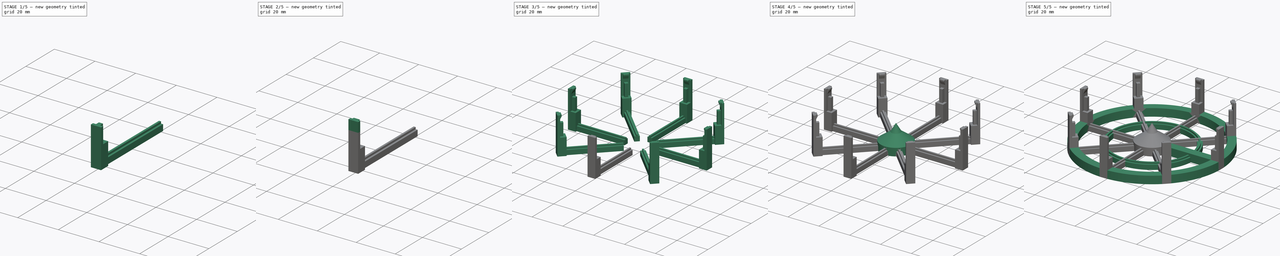
[diagram: build sequence overview — one tinted view per stage of 5, left to right]
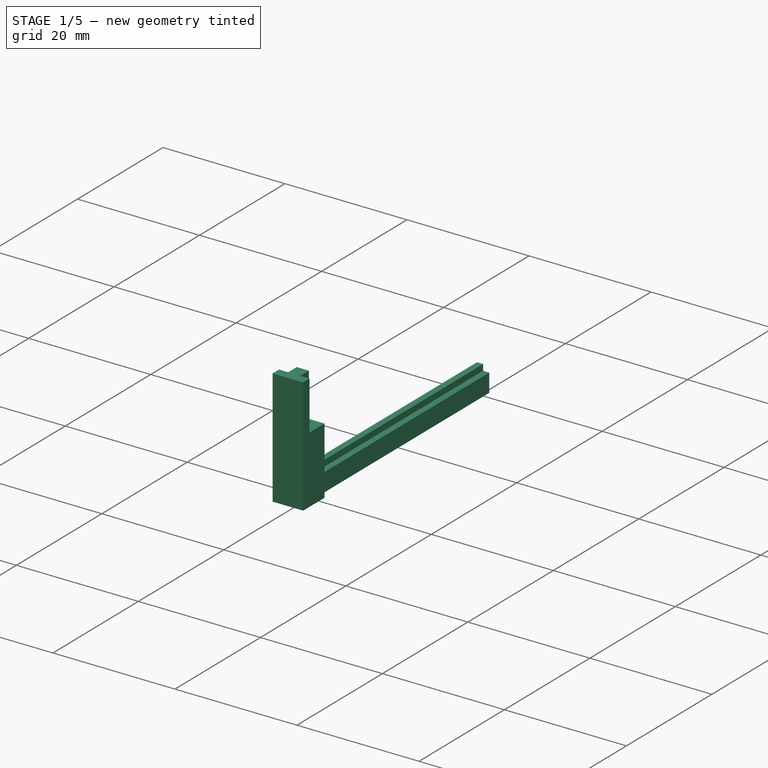
[diagram: stage 1 of 5 — iso view after this stage's code; geometry added in this stage tinted green]
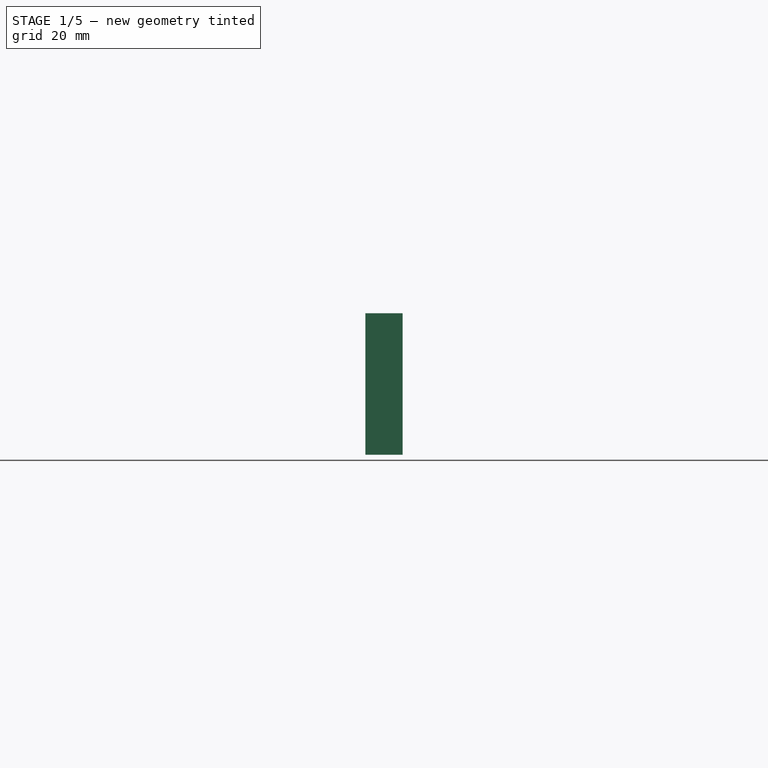
[diagram: stage 1 of 5 — front view after this stage's code; geometry added in this stage tinted green]
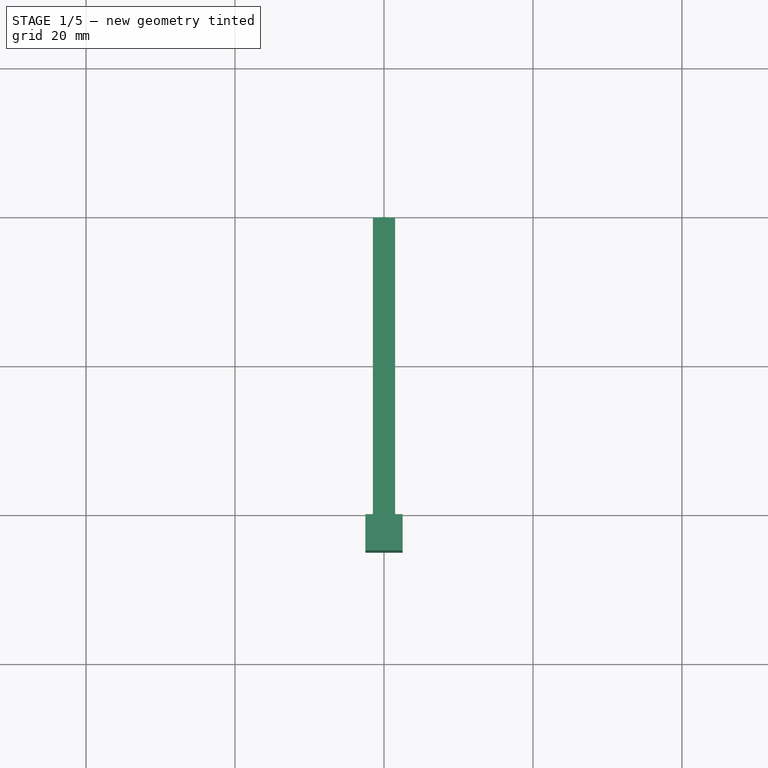
[diagram: stage 1 of 5 — top view after this stage's code; geometry added in this stage tinted green]
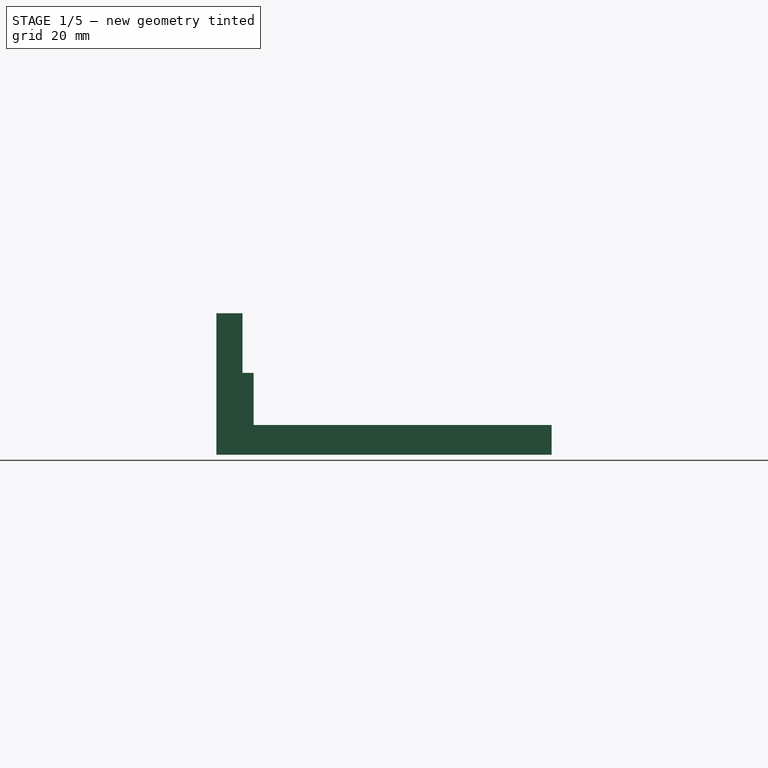
[diagram: stage 1 of 5 — right view after this stage's code; geometry added in this stage tinted green]
FCSTD DOCUMENT  (FreeCAD 0.18.4R)
Label: impeller-box-downside
License: All rights reserved
LicenseURL: http://en.wikipedia.org/wiki/All_rights_reserved
objects: Sketcher::SketchObject×14, PartDesign::Pad×11, PartDesign::Body×5, PartDesign::FeatureBase×3, PartDesign::AdditiveCone×2, Part::Fuse×2, Part::Loft×1, PartDesign::Fillet×1, PartDesign::Pocket×1, Part::FeaturePython×1
note: 55 computed .brp shape members not serialized (recipe doc carries the construction recipe); baked Part::Feature solids carry a one-line shape summary decoded from their .brp

FEATURE [PartDesign::Body] Body  label="center"
  Group = -> [Sketch,Pad,Cone,Cone001]
  Origin = -> Origin
  Tip = -> Cone001
FEATURE [Sketcher::SketchObject] Sketch001
  MapMode = 5
  Placement = pos=(0,0,0) rot=(1,0,0;1.5708rad)
  Support = -> [XZ_Plane001]
  sketch-geometry (4):
    g0: LineSegment StartX=-1.5 StartY=3 StartZ=0 EndX=1.5 EndY=3 EndZ=0
    g1: LineSegment StartX=1.5 StartY=3 StartZ=0 EndX=1.5 EndY=0 EndZ=0
    g2: LineSegment StartX=1.5 StartY=0 StartZ=0 EndX=-1.5 EndY=0 EndZ=0
    g3: LineSegment StartX=-1.5 StartY=0 StartZ=0 EndX=-1.5 EndY=3 EndZ=0
  constraints (12):
    c: Coincident(g0,g1)
    c: Coincident(g1,g2)
    c: Coincident(g2,g3)
    c: Coincident(g3,g0)
    c: Horizontal(g0)
    c: Horizontal(g2)
    c: Vertical(g1)
    c: Vertical(g3)
    c: DistanceX(g0,g0) = 3
    c: DistanceX(g2,g-1) = 1.5
    c: DistanceY(g1,g1) = 3
    c: DistanceY(g-1,g1) = 0
FEATURE [PartDesign::Pad] Pad001
  Length = 45
  Length2 = 100
  Placement = pos=(0,0,0) rot=(1,0,0;1.5708rad)
  Profile = -> Sketch001
  Type = 0
FEATURE [Sketcher::SketchObject] Sketch002
  AttachmentOffset = pos=(0,0,-3) rot=(0,0,1;0rad)
  MapMode = 5
  Placement = pos=(0,-7e-16,3) rot=(1,0,0;3.14159rad)
  Support = -> [Pad001]
  sketch-geometry (4):
    g0: LineSegment StartX=-0.5 StartY=45 StartZ=0 EndX=0.5 EndY=45 EndZ=0
    g1: LineSegment StartX=0.5 StartY=45 StartZ=0 EndX=0.5 EndY=0 EndZ=0
    g2: LineSegment StartX=0.5 StartY=0 StartZ=0 EndX=-0.5 EndY=0 EndZ=0
    g3: LineSegment StartX=-0.5 StartY=0 StartZ=0 EndX=-0.5 EndY=45 EndZ=0
  constraints (12):
    c: Coincident(g0,g1)
    c: Coincident(g1,g2)
    c: Coincident(g2,g3)
    c: Coincident(g3,g0)
    c: Horizontal(g0)
    c: Horizontal(g2)
    c: Vertical(g1)
    c: Vertical(g3)
    c: DistanceX(g2,g2) = 1
    c: DistanceY(g1,g1) = 45
    c: DistanceY(g-1,g1) = 0
    c: DistanceX(g2,g-1) = 0.5
FEATURE [PartDesign::Pad] Pad002
  BaseFeature = -> Pad001
  Length = 1
  Length2 = 100
  Placement = pos=(0,0,0) rot=(1,0,0;1.5708rad)
  Profile = -> Sketch002
  Reversed = true
  Type = 0
FEATURE [Sketcher::SketchObject] Sketch003
  MapMode = 5
  Support = -> [XY_Plane001]
  sketch-geometry (4):
    g0: LineSegment StartX=-2.5 StartY=-40 StartZ=0 EndX=2.5 EndY=-40 EndZ=0
    g1: LineSegment StartX=2.5 StartY=-40 StartZ=0 EndX=2.5 EndY=-45 EndZ=0
    g2: LineSegment StartX=2.5 StartY=-45 StartZ=0 EndX=-2.5 EndY=-45 EndZ=0
    g3: LineSegment StartX=-2.5 StartY=-45 StartZ=0 EndX=-2.5 EndY=-40 EndZ=0
  constraints (12):
    c: Coincident(g0,g1)
    c: Coincident(g1,g2)
    c: Coincident(g2,g3)
    c: Coincident(g3,g0)
    c: Horizontal(g0)
    c: Horizontal(g2)
    c: Vertical(g1)
    c: Vertical(g3)
    c: DistanceX(g0,g-1) = 2.5
    c: DistanceX(g0,g0) = 5
    c: DistanceY(g1,g1) = 5
    c: DistanceY(g1,g-1) = 45
FEATURE [PartDesign::Pad] Pad003
  BaseFeature = -> Pad002
  Length = 11
  Length2 = 100
  Placement = pos=(0,0,0) rot=(1,0,0;1.5708rad)
  Profile = -> Sketch003
  Type = 0
FEATURE [Sketcher::SketchObject] Sketch004
  ExternalGeometry = -> [Pad003]
  MapMode = 5
  Placement = pos=(0,0,11) rot=(0,0,1;3.14159rad)
  Support = -> [Pad003]
  sketch-geometry (8):
    g0: LineSegment StartX=-2.5 StartY=45 StartZ=0 EndX=2.5 EndY=45 EndZ=0
    g1: LineSegment StartX=2.5 StartY=45 StartZ=0 EndX=2.5 EndY=43.5 EndZ=0
    g2: LineSegment StartX=2.5 StartY=43.5 StartZ=0 EndX=1 EndY=43.5 EndZ=0
    g3: LineSegment StartX=1 StartY=43.5 StartZ=0 EndX=1 EndY=41.5 EndZ=0
    g4: LineSegment StartX=1 StartY=41.5 StartZ=0 EndX=-1 EndY=41.5 EndZ=0
    g5: LineSegment StartX=-1 StartY=41.5 StartZ=0 EndX=-1 EndY=43.5 EndZ=0
    g6: LineSegment StartX=-1 StartY=43.5 StartZ=0 EndX=-2.5 EndY=43.5 EndZ=0
    g7: LineSegment StartX=-2.5 StartY=43.5 StartZ=0 EndX=-2.5 EndY=45 EndZ=0
  constraints (22):
    c: Coincident(g0,g1)
    c: Coincident(g1,g2)
    c: Coincident(g2,g3)
    c: Coincident(g3,g4)
    c: Coincident(g4,g5)
    c: Coincident(g5,g6)
    c: Coincident(g6,g7)
    c: Coincident(g7,g0)
    c: Coincident(g0,g-3)
    c: Coincident(g0,g-3)
    c: Vertical(g1)
    c: Vertical(g7)
    c: Vertical(g5)
    c: Vertical(g3)
    c: Horizontal(g2)
    c: Horizontal(g6)
    c: Horizontal(g4)
    c: DistanceX(g2,g2) = 1.5
    c: DistanceX(g6,g6) = 1.5
    c: DistanceY(g7,g7) = 1.5
    c: DistanceY(g1,g1) = 1.5
    c: DistanceY(g3,g3) = 2
FEATURE [PartDesign::Pad] Pad004
  BaseFeature = -> Pad003
  Length = 8
  Length2 = 100
  Placement = pos=(0,0,0) rot=(1,0,0;1.5708rad)
  Profile = -> Sketch004
  Type = 0
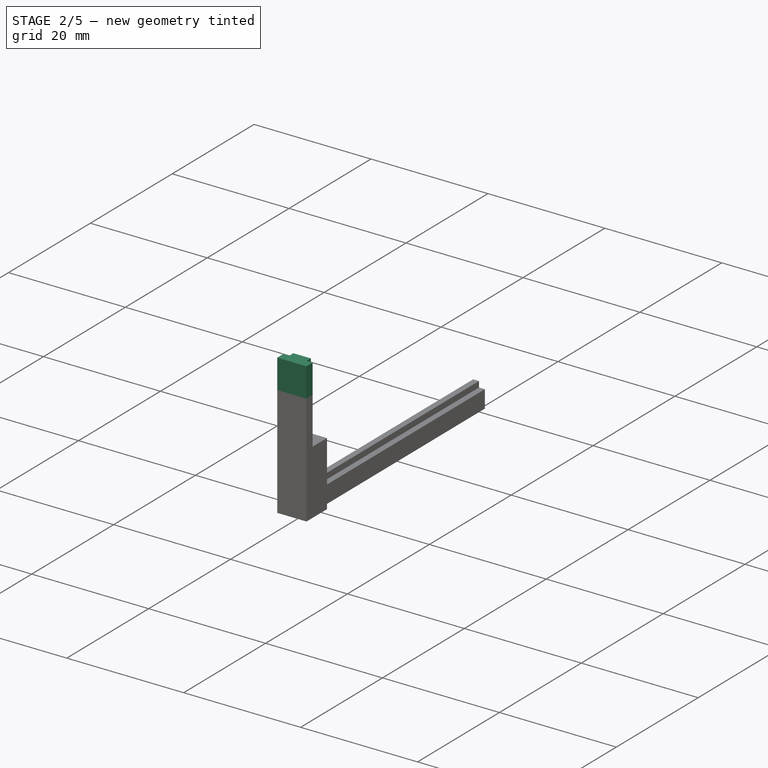
[diagram: stage 2 of 5 — iso view after this stage's code; geometry added in this stage tinted green]
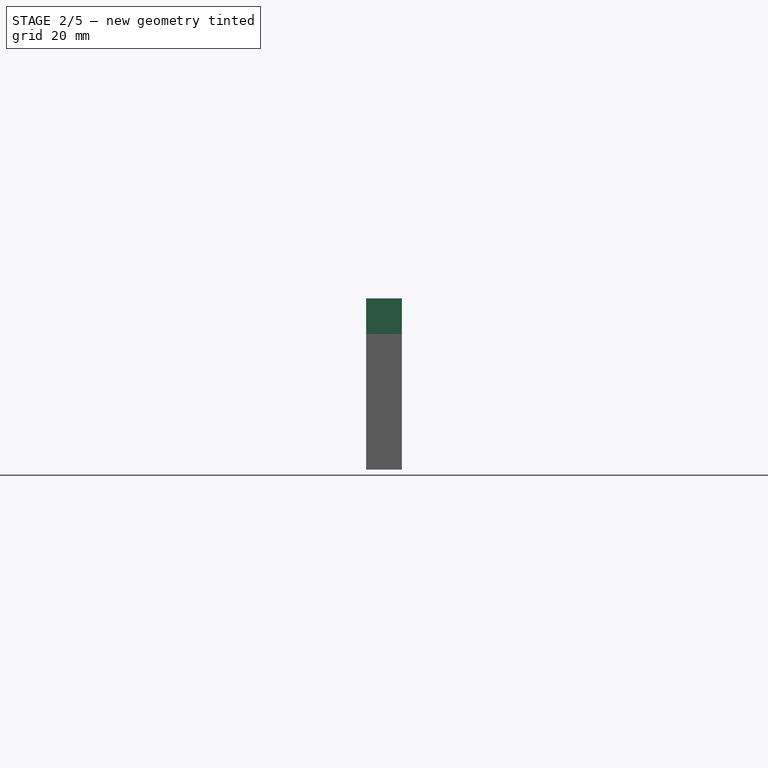
[diagram: stage 2 of 5 — front view after this stage's code; geometry added in this stage tinted green]
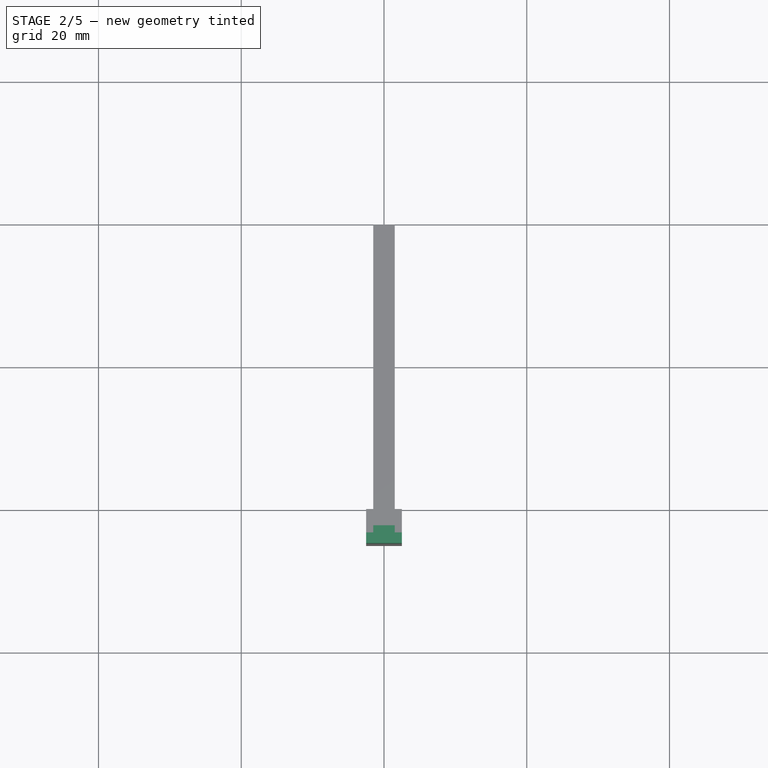
[diagram: stage 2 of 5 — top view after this stage's code; geometry added in this stage tinted green]
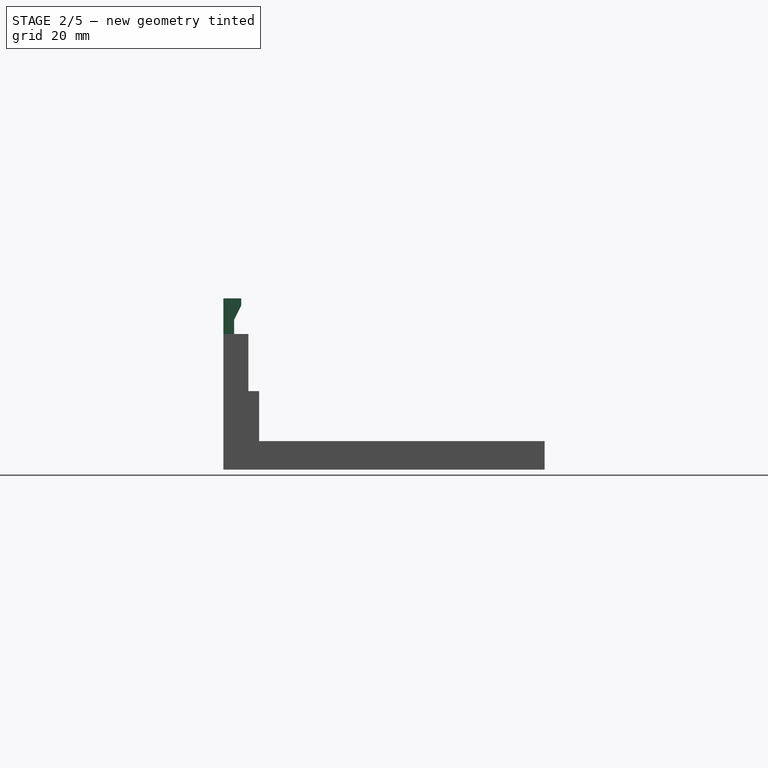
[diagram: stage 2 of 5 — right view after this stage's code; geometry added in this stage tinted green]
FEATURE [Sketcher::SketchObject] Sketch005
  ExternalGeometry = -> [Pad004]
  MapMode = 5
  Placement = pos=(0,0,19) rot=(0,0,1;3.14159rad)
  Support = -> [Pad004]
  sketch-geometry (4):
    g0: LineSegment StartX=-2.5 StartY=45 StartZ=0 EndX=2.5 EndY=45 EndZ=0
    g1: LineSegment StartX=2.5 StartY=45 StartZ=0 EndX=2.5 EndY=43.5 EndZ=0
    g2: LineSegment StartX=2.5 StartY=43.5 StartZ=0 EndX=-2.5 EndY=43.5 EndZ=0
    g3: LineSegment StartX=-2.5 StartY=43.5 StartZ=0 EndX=-2.5 EndY=45 EndZ=0
  constraints (11):
    c: Coincident(g0,g1)
    c: Coincident(g1,g2)
    c: Coincident(g2,g3)
    c: Coincident(g3,g0)
    c: Horizontal(g0)
    c: Horizontal(g2)
    c: Vertical(g1)
    c: Vertical(g3)
    c: Coincident(g0,g-3)
    c: DistanceX(g0,g0) = 5
    c: DistanceY(g3,g3) = 1.5
FEATURE [PartDesign::Pad] Pad005
  BaseFeature = -> Pad004
  Length = 5
  Length2 = 100
  Placement = pos=(0,0,0) rot=(1,0,0;1.5708rad)
  Profile = -> Sketch005
  Type = 0
FEATURE [Sketcher::SketchObject] Sketch006
  ExternalGeometry = -> [Pad005]
  MapMode = 5
  Placement = pos=(0,-43.5,0) rot=(-1,0,0;1.5708rad)
  Support = -> [Pad005]
  sketch-geometry (4):
    g0: LineSegment StartX=-1.5 StartY=-23 StartZ=0 EndX=1.5 EndY=-23 EndZ=0
    g1: LineSegment StartX=1.5 StartY=-23 StartZ=0 EndX=1.5 EndY=-24 EndZ=0
    g2: LineSegment StartX=1.5 StartY=-24 StartZ=0 EndX=-1.5 EndY=-24 EndZ=0
    g3: LineSegment StartX=-1.5 StartY=-24 StartZ=0 EndX=-1.5 EndY=-23 EndZ=0
  constraints (12):
    c: Coincident(g0,g1)
    c: Coincident(g1,g2)
    c: Coincident(g2,g3)
    c: Coincident(g3,g0)
    c: Horizontal(g0)
    c: Horizontal(g2)
    c: Vertical(g1)
    c: Vertical(g3)
    c: DistanceX(g2,g2) = 3
    c: DistanceY(g1,g1) = 1
    c: DistanceY(g2,g-3) = 0
    c: DistanceX(g1,g-3) = 1
FEATURE [PartDesign::Pad] Pad006
  BaseFeature = -> Pad005
  Length = 1
  Length2 = 100
  Placement = pos=(0,0,0) rot=(1,0,0;1.5708rad)
  Profile = -> Sketch006
  Type = 0
FEATURE [Sketcher::SketchObject] Sketch007
  AttachmentOffset = pos=(0,0,-1) rot=(0,0,1;0rad)
  ExternalGeometry = -> [Pad006]
  MapMode = 5
  Placement = pos=(0,0,23) rot=(0,0,1;3.14159rad)
  Support = -> [Pad006]
  sketch-geometry (4):
    g0: LineSegment StartX=-1.5 StartY=43.5 StartZ=0 EndX=1.5 EndY=43.5 EndZ=0
    g1: LineSegment StartX=1.5 StartY=43.5 StartZ=0 EndX=1.5 EndY=42.5 EndZ=0
    g2: LineSegment StartX=1.5 StartY=42.5 StartZ=0 EndX=-1.5 EndY=42.5 EndZ=0
    g3: LineSegment StartX=-1.5 StartY=42.5 StartZ=0 EndX=-1.5 EndY=43.5 EndZ=0
  constraints (10):
    c: Coincident(g0,g1)
    c: Coincident(g1,g2)
    c: Coincident(g2,g3)
    c: Coincident(g3,g0)
    c: Horizontal(g0)
    c: Horizontal(g2)
    c: Vertical(g1)
    c: Vertical(g3)
    c: Coincident(g0,g-3)
    c: Coincident(g2,g-4)
FEATURE [Sketcher::SketchObject] Sketch008
  AttachmentOffset = pos=(0,1,-3) rot=(0,0,1;0rad)
  MapMode = 5
  Placement = pos=(0,-1,21) rot=(0,0,1;3.14159rad)
  Support = -> [Pad006]
  sketch-geometry (4):
    g0: LineSegment StartX=-1.5 StartY=43.5 StartZ=0 EndX=1.5 EndY=43.5 EndZ=0
    g1: LineSegment StartX=1.5 StartY=43.5 StartZ=0 EndX=1.5 EndY=42.5 EndZ=0
    g2: LineSegment StartX=1.5 StartY=42.5 StartZ=0 EndX=-1.5 EndY=42.5 EndZ=0
    g3: LineSegment StartX=-1.5 StartY=42.5 StartZ=0 EndX=-1.5 EndY=43.5 EndZ=0
  constraints (12):
    c: Coincident(g0,g1)
    c: Coincident(g1,g2)
    c: Coincident(g2,g3)
    c: Coincident(g3,g0)
    c: Horizontal(g0)
    c: Horizontal(g2)
    c: Vertical(g1)
    c: Vertical(g3)
    c: DistanceX(g0,g0) = 3
    c: DistanceY(g1,g1) = 1
    c: DistanceY(g-1,g1) = 42.5
    c: DistanceX(g-1,g1) = 1.5
FEATURE [PartDesign::Body] Body001
  Group = -> [Sketch001,Pad001,Sketch002,Pad002,Sketch003,Pad003,Sketch004,Pad004,Sketch005,Pad005,Sketch006,Pad006,Sketch007,Sketch008]
  Origin = -> Origin001
  Tip = -> Pad006
FEATURE [Part::Loft] Loft
  Closed = false
  MaxDegree = 5
  Ruled = false
  Sections = -> [Sketch007,Sketch008]
  Solid = true
FEATURE [Part::Fuse] Fusion
  Base = -> Body001
  Tool = -> Loft
FEATURE [PartDesign::FeatureBase] BaseFeature
  BaseFeature = -> Fusion
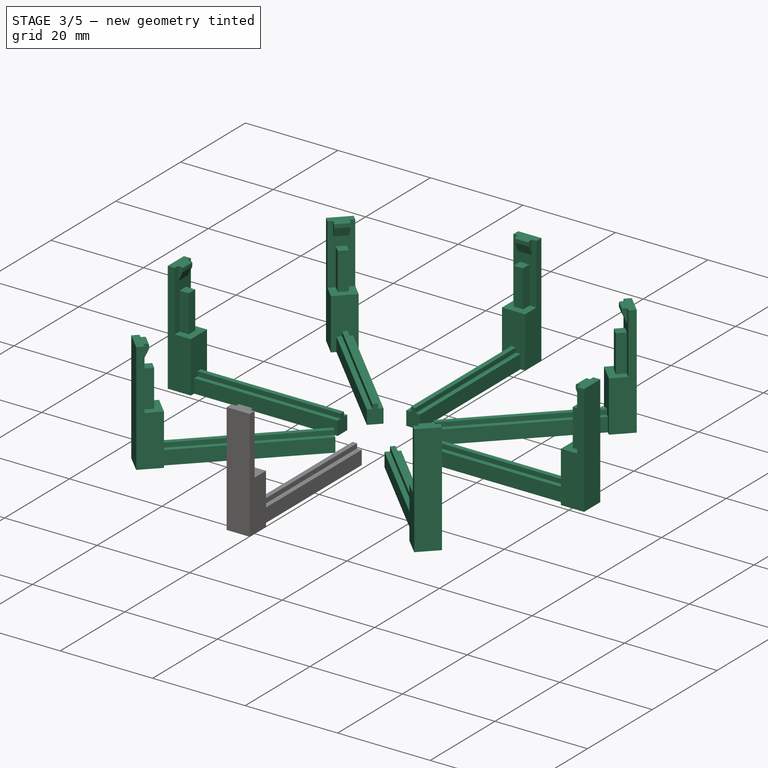
[diagram: stage 3 of 5 — iso view after this stage's code; geometry added in this stage tinted green]
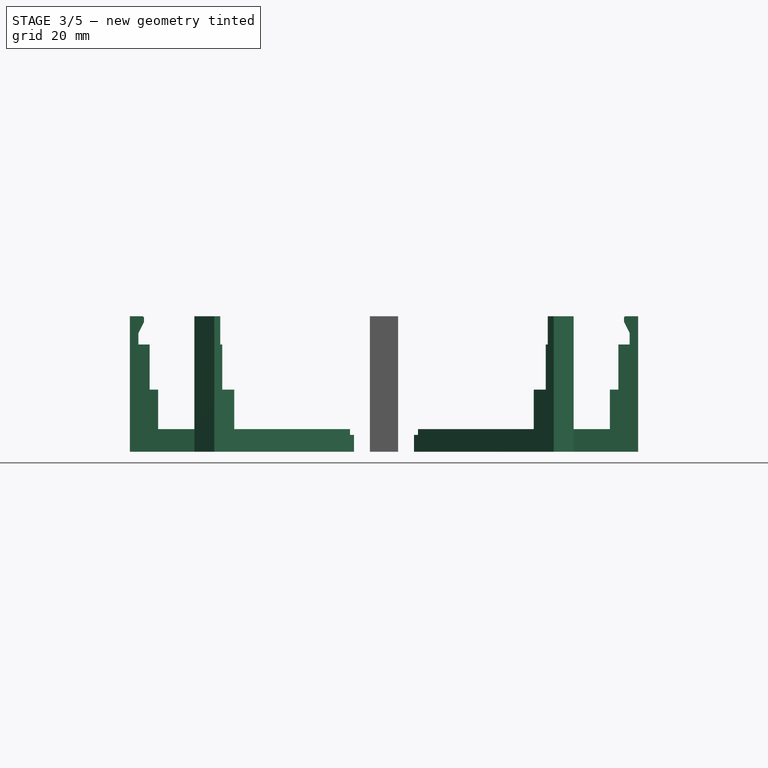
[diagram: stage 3 of 5 — front view after this stage's code; geometry added in this stage tinted green]
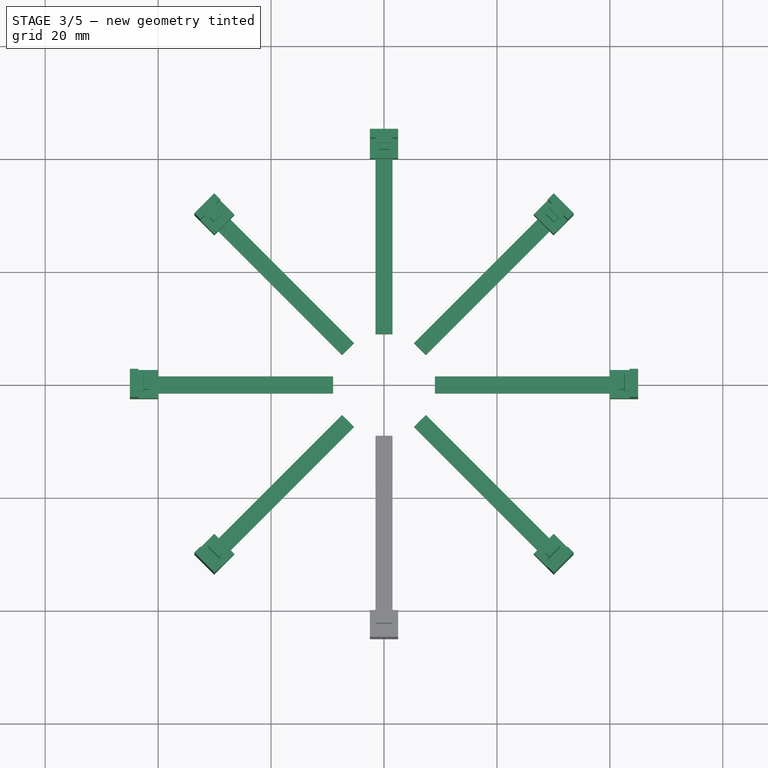
[diagram: stage 3 of 5 — top view after this stage's code; geometry added in this stage tinted green]
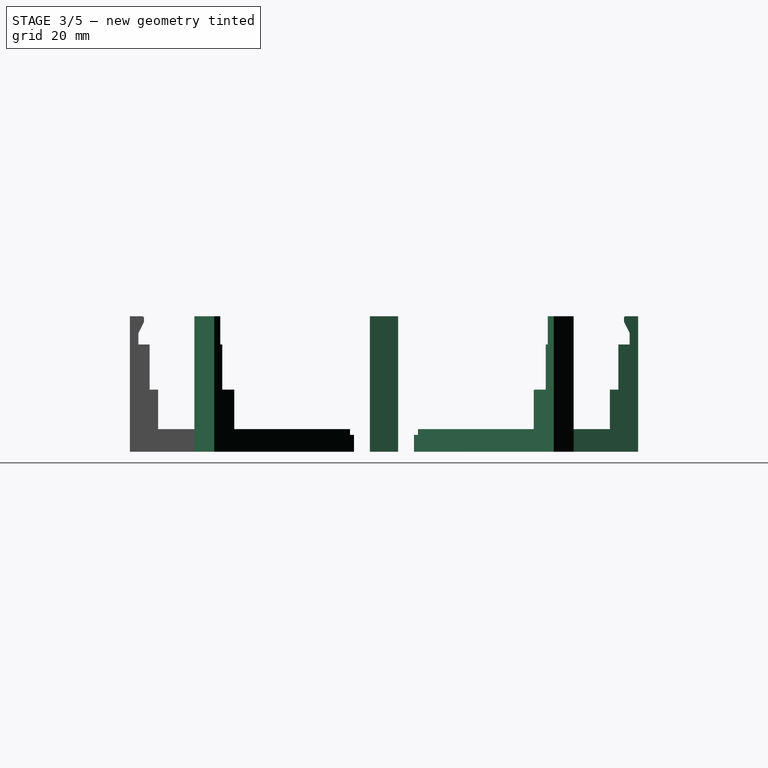
[diagram: stage 3 of 5 — right view after this stage's code; geometry added in this stage tinted green]
FEATURE [PartDesign::Fillet] Fillet
  Base = -> BaseFeature [Edge99]
  BaseFeature = -> BaseFeature
  Radius = 0.3
FEATURE [Sketcher::SketchObject] Sketch009
  MapMode = 5
  Placement = pos=(0,0,0) rot=(1,0,0;3.14159rad)
  Support = -> [Fillet]
  sketch-geometry (4):
    g0: LineSegment StartX=-2.5 StartY=9 StartZ=0 EndX=2.5 EndY=9 EndZ=0
    g1: LineSegment StartX=2.5 StartY=9 StartZ=0 EndX=2.5 EndY=0 EndZ=0
    g2: LineSegment StartX=2.5 StartY=0 StartZ=0 EndX=-2.5 EndY=0 EndZ=0
    g3: LineSegment StartX=-2.5 StartY=0 StartZ=0 EndX=-2.5 EndY=9 EndZ=0
  constraints (12):
    c: Coincident(g0,g1)
    c: Coincident(g1,g2)
    c: Coincident(g2,g3)
    c: Coincident(g3,g0)
    c: Horizontal(g0)
    c: Horizontal(g2)
    c: Vertical(g1)
    c: Vertical(g3)
    c: DistanceY(g1,g1) = 9
    c: DistanceY(g1,g-1) = 0
    c: DistanceX(g0,g0) = 5
    c: DistanceX(g0,g-1) = 2.5
FEATURE [PartDesign::Pocket] Pocket
  BaseFeature = -> Fillet
  Length = 10
  Length2 = 100
  Profile = -> Sketch009
  Type = 0
FEATURE [PartDesign::Body] Body002
  BaseFeature = -> Fusion
  Group = -> [BaseFeature,Fillet,Sketch009,Pocket]
  Origin = -> Origin002
  Tip = -> Pocket
FEATURE [Part::FeaturePython] Array  # Draft array (typed FeaturePython)
  Angle = 360
  ArrayType = 1
  Axis = (0,0,1)
  Base = -> Body002
  Center = (0,0,0)
  Fuse = false
  IntervalAxis = (0,0,0)
  IntervalX = (1,0,0)
  IntervalY = (0,1,0)
  IntervalZ = (0,0,1)
  NumberPolar = 8
  NumberX = 2
  NumberY = 2
  NumberZ = 1
FEATURE [PartDesign::FeatureBase] BaseFeature001
  BaseFeature = -> Array
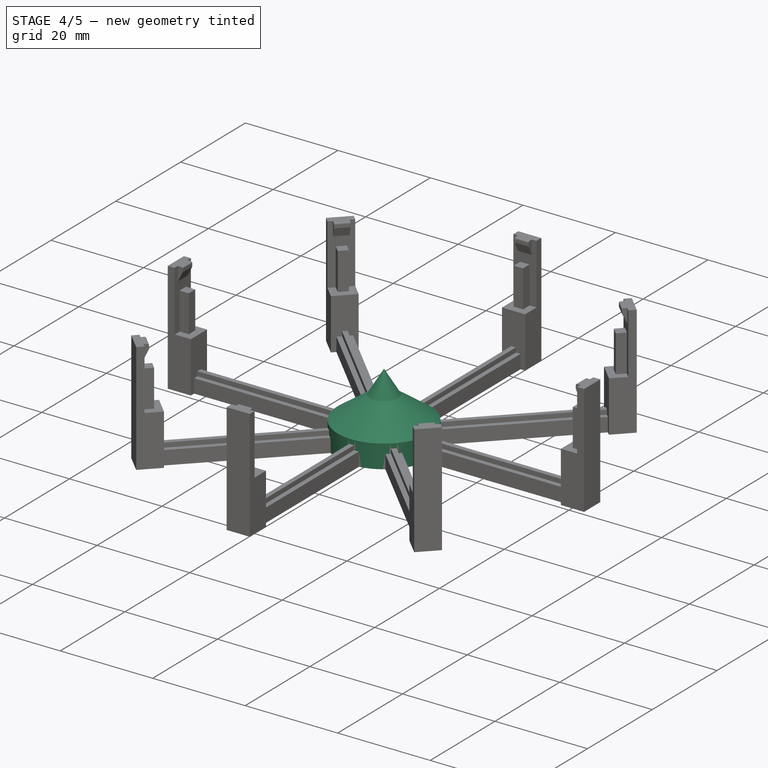
[diagram: stage 4 of 5 — iso view after this stage's code; geometry added in this stage tinted green]
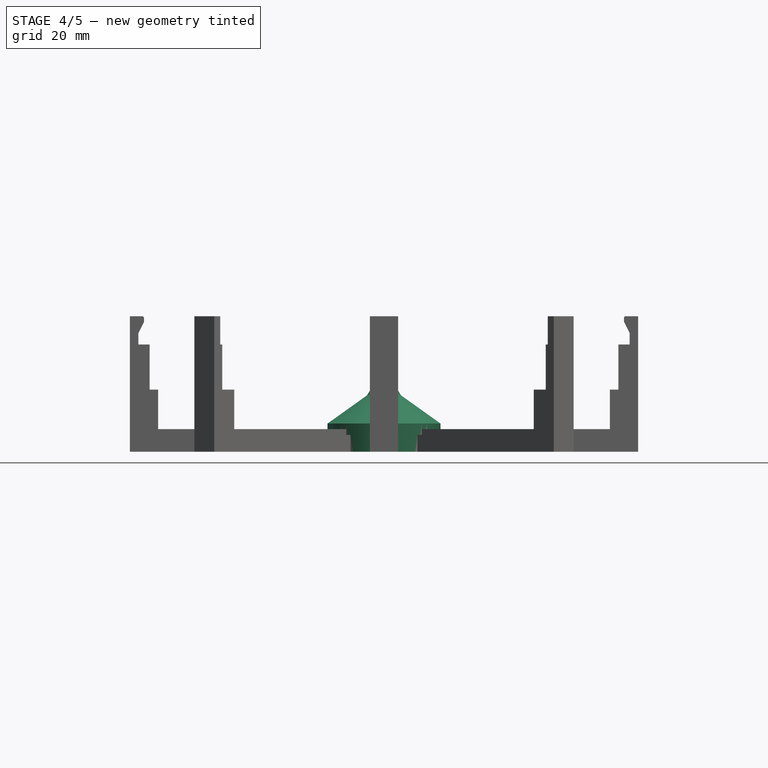
[diagram: stage 4 of 5 — front view after this stage's code; geometry added in this stage tinted green]
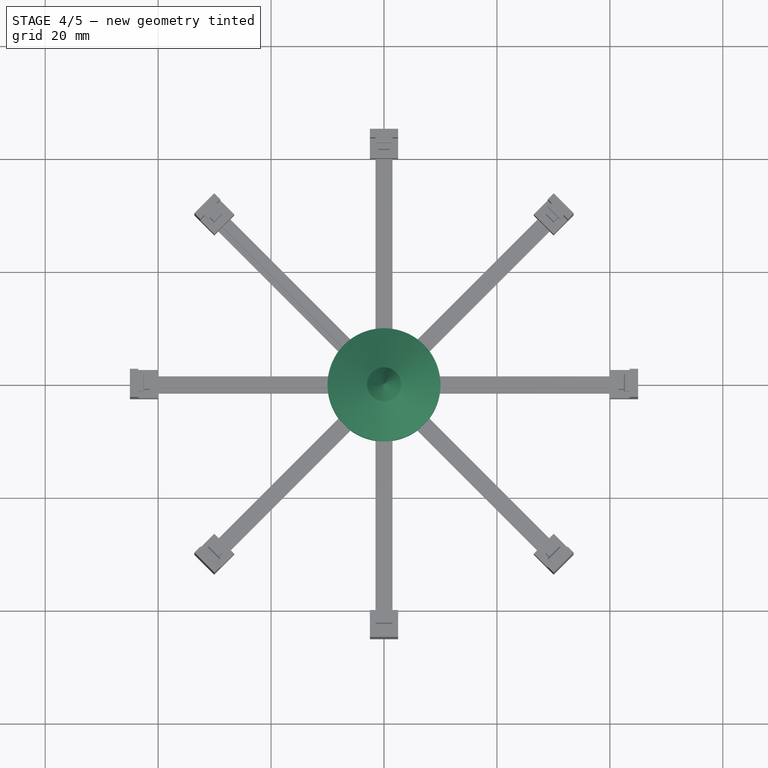
[diagram: stage 4 of 5 — top view after this stage's code; geometry added in this stage tinted green]
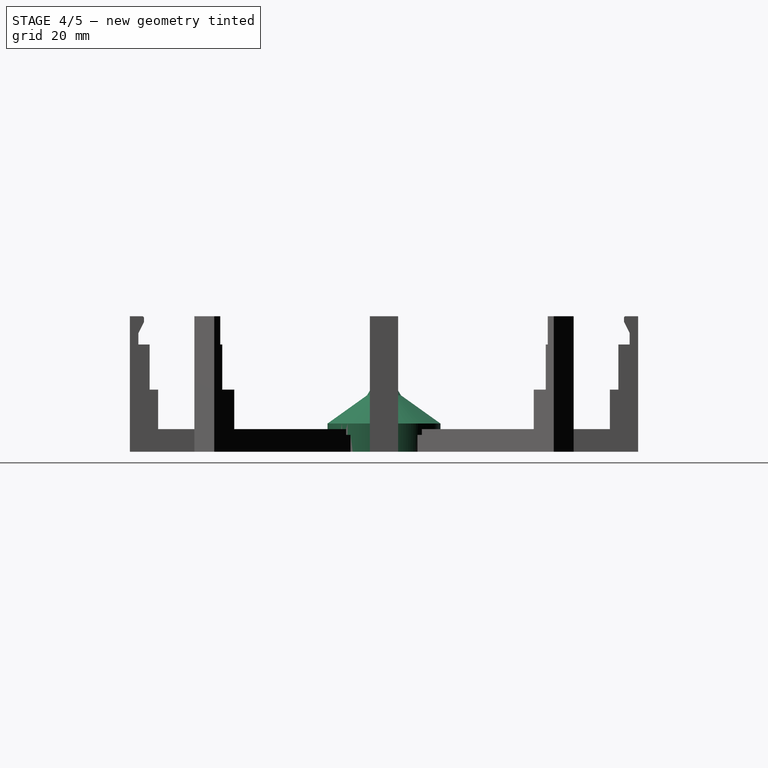
[diagram: stage 4 of 5 — right view after this stage's code; geometry added in this stage tinted green]
FEATURE [Sketcher::SketchObject] Sketch
  MapMode = 5
  Support = -> [XY_Plane]
  sketch-geometry (1):
    g0: Circle CenterX=0 CenterY=0 CenterZ=0 NormalX=0 NormalY=0 NormalZ=1 AngleXU=0 Radius=10
  constraints (2):
    c: Coincident(g0,g-1)
    c: Radius(g0) = 10
FEATURE [PartDesign::Pad] Pad
  Length = 5
  Length2 = 100
  Profile = -> Sketch
  Type = 0
FEATURE [PartDesign::AdditiveCone] Cone
  Angle = 360
  AttacherType = Attacher::AttachEngine3D
  BaseFeature = -> Pad
  Height = 5
  MapMode = 5
  Placement = pos=(0,0,5) rot=(0,0,1;0rad)
  Radius1 = 10
  Radius2 = 3
  Support = -> [Pad]
FEATURE [PartDesign::AdditiveCone] Cone001
  Angle = 360
  AttacherType = Attacher::AttachEngine3D
  BaseFeature = -> Cone
  Height = 5
  MapMode = 5
  Placement = pos=(0,0,10) rot=(0,0,1;0rad)
  Radius1 = 3
  Radius2 = 0
  Support = -> [Cone]
FEATURE [PartDesign::Body] Body003
  BaseFeature = -> Array
  Group = -> [BaseFeature001]
  Origin = -> Origin003
  Tip = -> BaseFeature001
FEATURE [Part::Fuse] Fusion001
  Base = -> Body
  Tool = -> Body003
FEATURE [PartDesign::FeatureBase] BaseFeature002
  BaseFeature = -> Fusion001
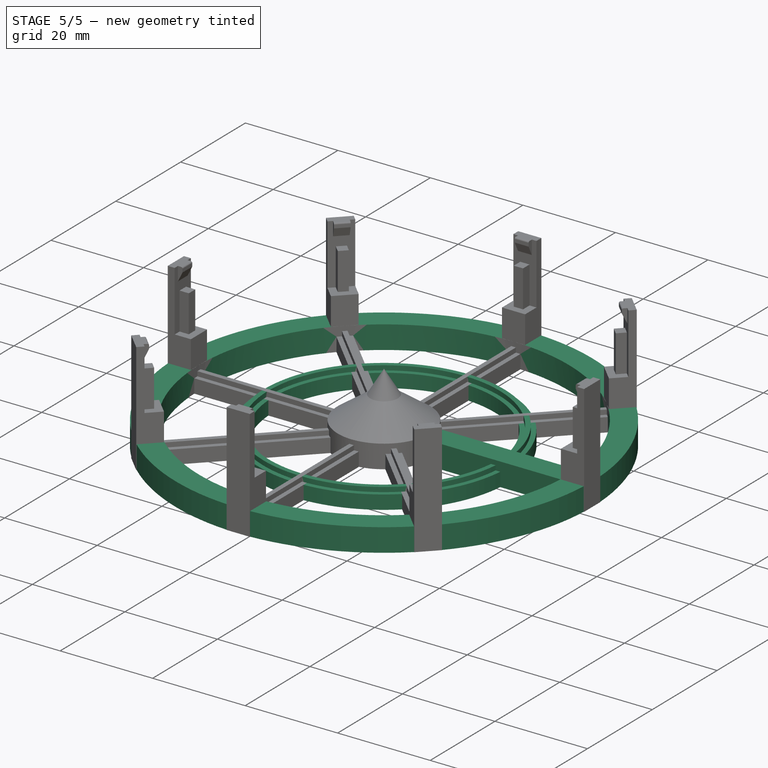
[diagram: stage 5 of 5 — iso view after this stage's code; geometry added in this stage tinted green]
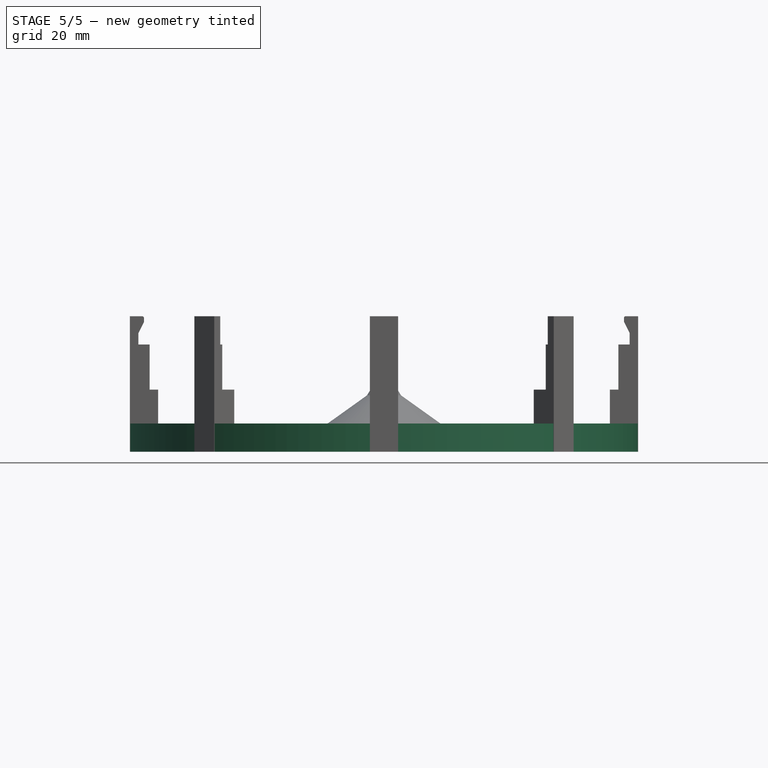
[diagram: stage 5 of 5 — front view after this stage's code; geometry added in this stage tinted green]
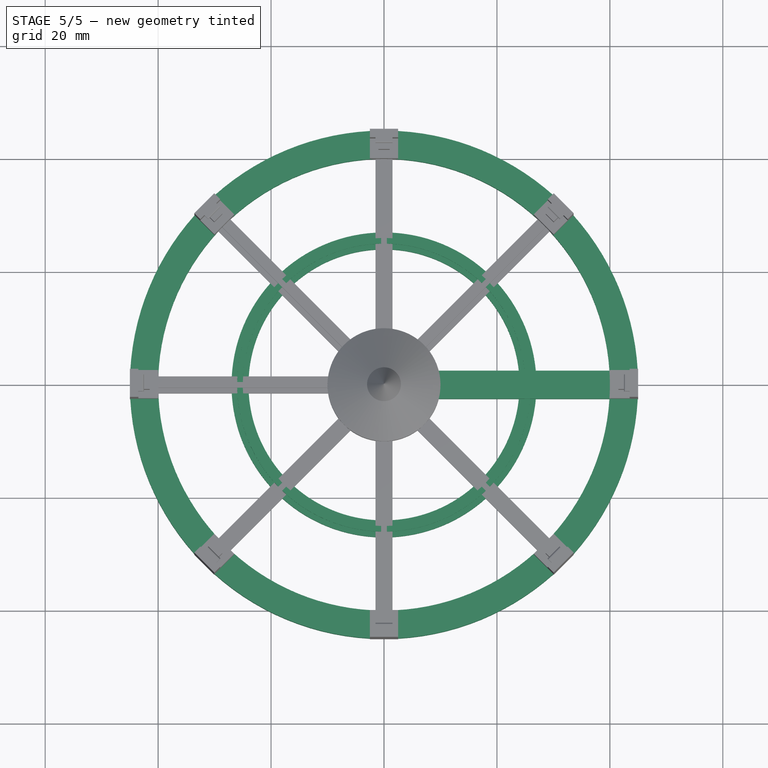
[diagram: stage 5 of 5 — top view after this stage's code; geometry added in this stage tinted green]
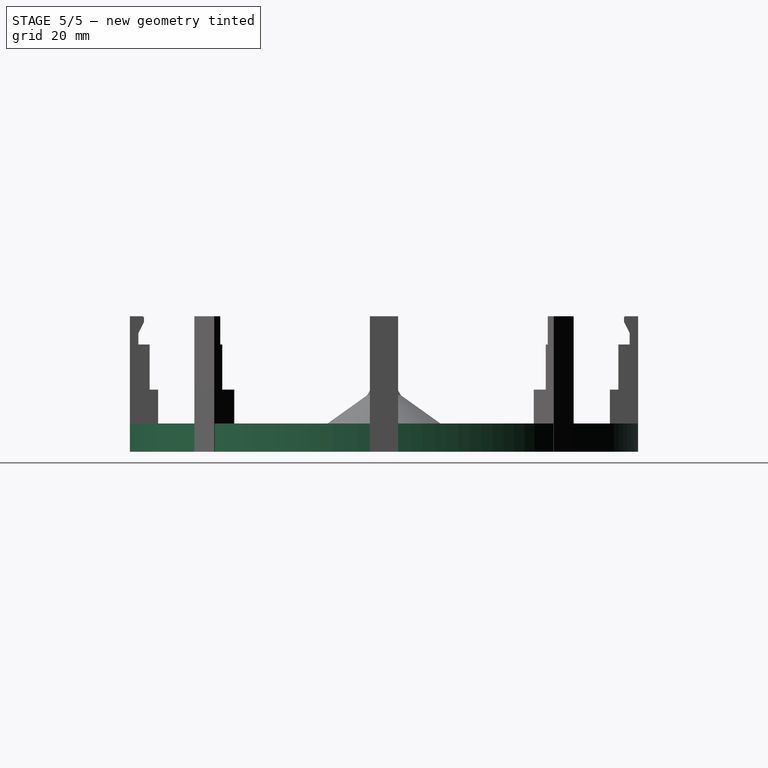
[diagram: stage 5 of 5 — right view after this stage's code; geometry added in this stage tinted green]
FEATURE [Sketcher::SketchObject] Sketch010
  AttachmentOffset = pos=(0,0,9) rot=(0,0,1;0rad)
  MapMode = 5
  Placement = pos=(9,-2e-15,2e-15) rot=(0.57735,0.57735,0.57735;2.0944rad)
  Support = -> [YZ_Plane004]
  sketch-geometry (4):
    g0: LineSegment StartX=-2.5 StartY=5 StartZ=0 EndX=2.5 EndY=5 EndZ=0
    g1: LineSegment StartX=2.5 StartY=5 StartZ=0 EndX=2.5 EndY=0 EndZ=0
    g2: LineSegment StartX=2.5 StartY=0 StartZ=0 EndX=-2.5 EndY=0 EndZ=0
    g3: LineSegment StartX=-2.5 StartY=0 StartZ=0 EndX=-2.5 EndY=5 EndZ=0
  constraints (12):
    c: Coincident(g0,g1)
    c: Coincident(g1,g2)
    c: Coincident(g2,g3)
    c: Coincident(g3,g0)
    c: Horizontal(g0)
    c: Horizontal(g2)
    c: Vertical(g1)
    c: Vertical(g3)
    c: DistanceX(g0,g0) = 5
    c: DistanceY(g3,g3) = 5
    c: DistanceY(g-1,g2) = 0
    c: DistanceX(g-1,g1) = 2.5
FEATURE [PartDesign::Pad] Pad007
  BaseFeature = -> BaseFeature002
  Length = 36
  Length2 = 100
  Profile = -> Sketch010
  Type = 0
FEATURE [Sketcher::SketchObject] Sketch011
  MapMode = 5
  Support = -> [XY_Plane004]
  sketch-geometry (2):
    g0: Circle CenterX=0 CenterY=0 CenterZ=0 NormalX=0 NormalY=0 NormalZ=1 AngleXU=0 Radius=45
    g1: Circle CenterX=0 CenterY=0 CenterZ=0 NormalX=0 NormalY=0 NormalZ=1 AngleXU=0 Radius=40
  constraints (4):
    c: Coincident(g0,g-1)
    c: Coincident(g1,g0)
    c: Radius(g0) = 45
    c: Radius(g1) = 40
FEATURE [PartDesign::Pad] Pad008
  BaseFeature = -> Pad007
  Length = 5
  Length2 = 100
  Profile = -> Sketch011
  Type = 0
FEATURE [Sketcher::SketchObject] Sketch012
  MapMode = 5
  Support = -> [XY_Plane004]
  sketch-geometry (2):
    g0: Circle CenterX=0 CenterY=0 CenterZ=0 NormalX=0 NormalY=0 NormalZ=1 AngleXU=0 Radius=27
    g1: Circle CenterX=0 CenterY=0 CenterZ=0 NormalX=0 NormalY=0 NormalZ=1 AngleXU=0 Radius=24
  constraints (4):
    c: Coincident(g0,g-1)
    c: Coincident(g1,g0)
    c: Radius(g0) = 27
    c: Radius(g1) = 24
FEATURE [PartDesign::Pad] Pad009
  BaseFeature = -> Pad008
  Length = 3
  Length2 = 100
  Profile = -> Sketch012
  Type = 0
FEATURE [Sketcher::SketchObject] Sketch013
  AttachmentOffset = pos=(0,0,3) rot=(0,0,1;0rad)
  MapMode = 5
  Placement = pos=(0,0,3) rot=(0,0,1;0rad)
  Support = -> [XY_Plane004]
  sketch-geometry (2):
    g0: Circle CenterX=0 CenterY=0 CenterZ=0 NormalX=0 NormalY=0 NormalZ=1 AngleXU=0 Radius=25
    g1: Circle CenterX=0 CenterY=0 CenterZ=0 NormalX=0 NormalY=0 NormalZ=1 AngleXU=0 Radius=26
  constraints (4):
    c: Radius(g0) = 25
    c: Radius(g1) = 26
    c: Coincident(g0,g-1)
    c: Coincident(g1,g0)
FEATURE [PartDesign::Pad] Pad010
  BaseFeature = -> Pad009
  Length = 1
  Length2 = 100
  Profile = -> Sketch013
  Type = 0
FEATURE [PartDesign::Body] Body004
  BaseFeature = -> Fusion001
  Group = -> [BaseFeature002,Sketch010,Pad007,Sketch011,Pad008,Sketch012,Pad009,Sketch013,Pad010]
  Origin = -> Origin004
  Tip = -> Pad010
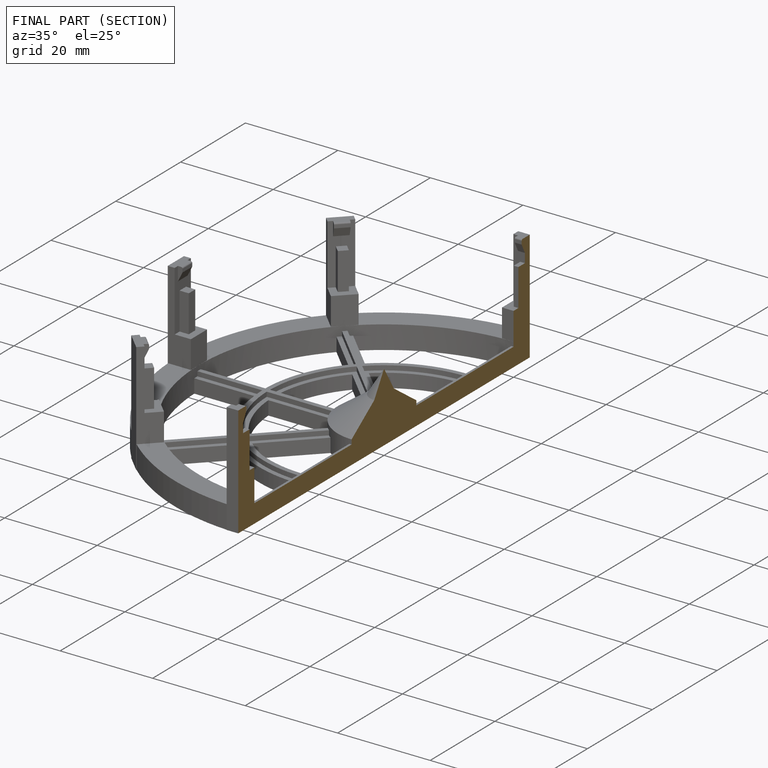
[diagram: finished part — half-section view (interior)]
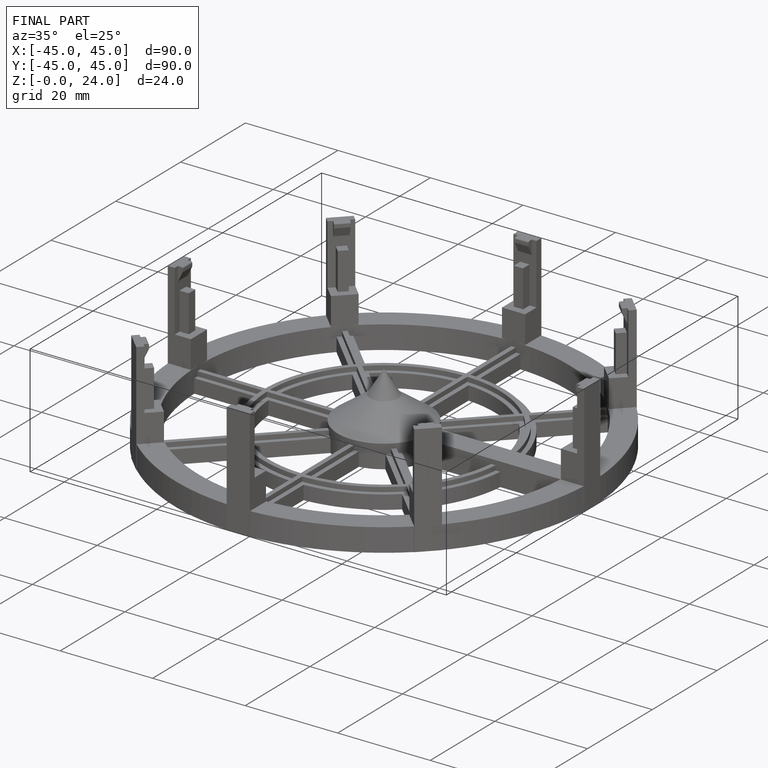
[diagram: finished part — iso view with bounding-box wireframe]
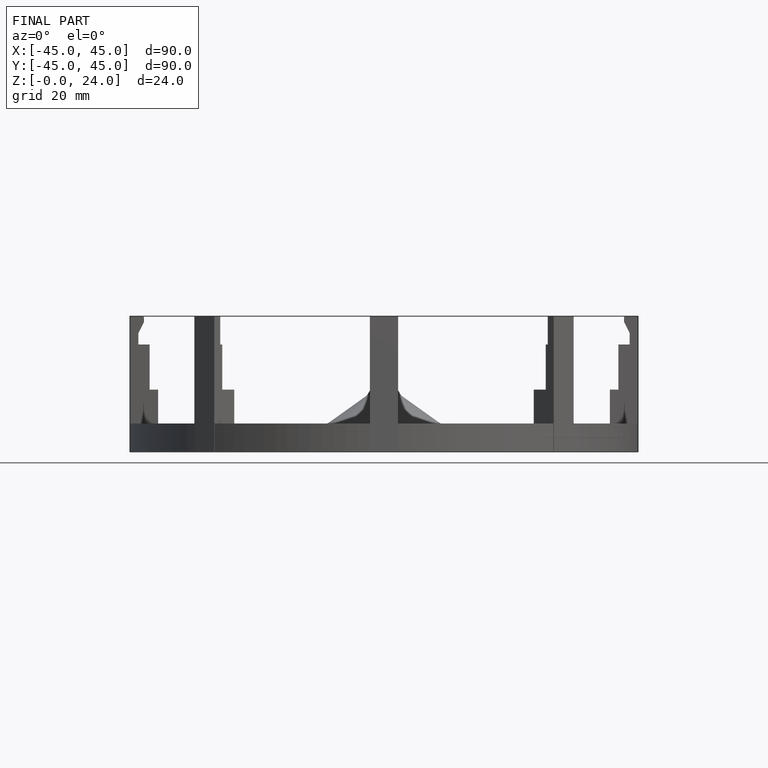
[diagram: finished part — front view with bounding-box wireframe]
